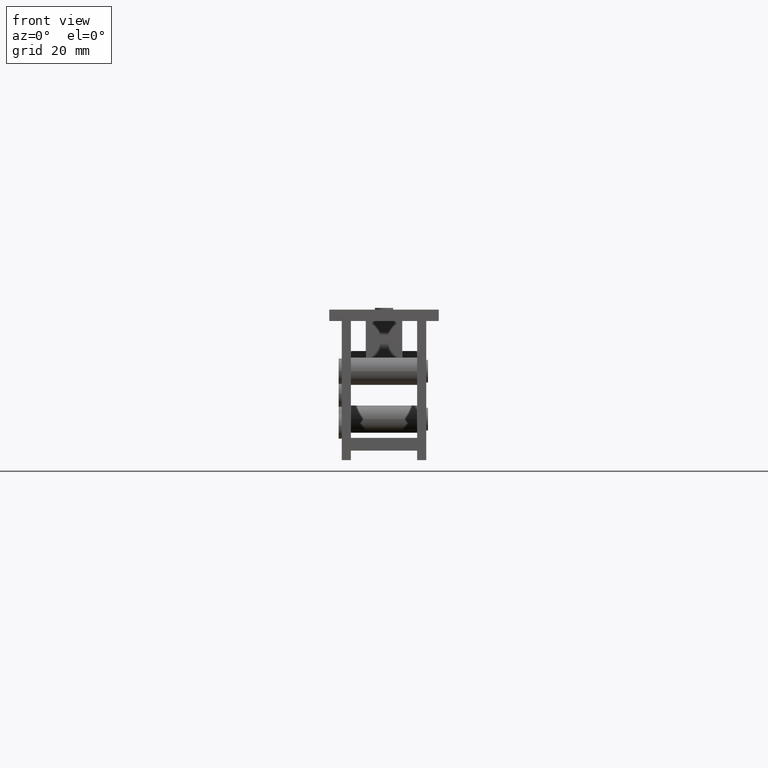
[diagram: clean part render]
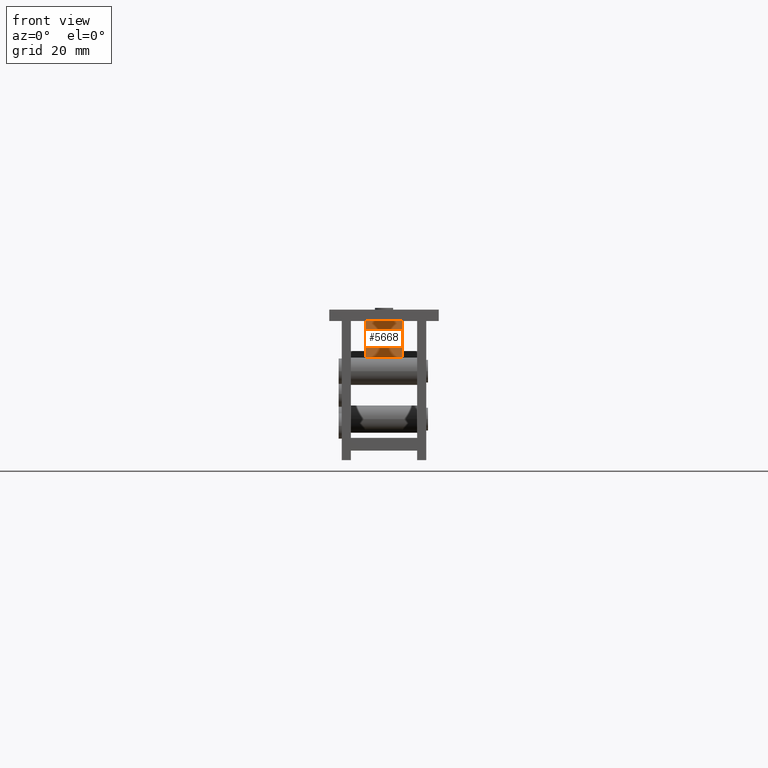
[diagram: same view with one face highlighted and labeled with its STEP entity id]
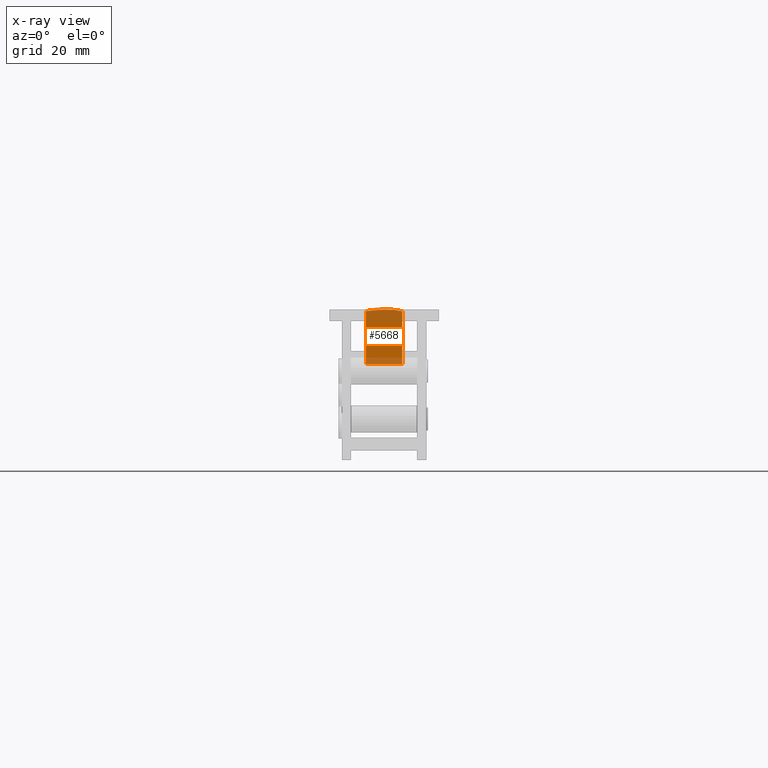
[diagram: x-ray of the same camera — body ghosted, the highlighted face saturated]
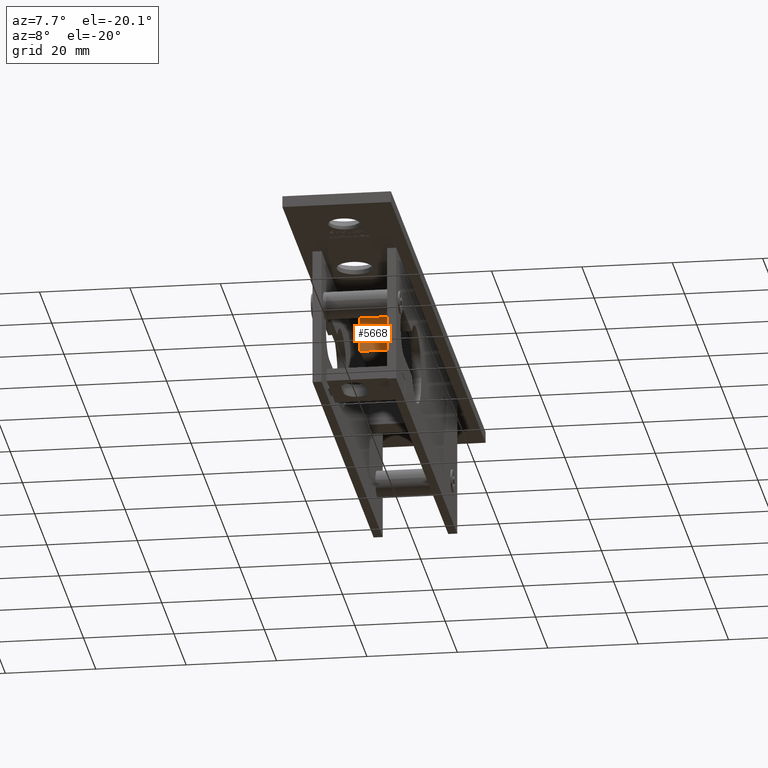
[diagram: same view with one face highlighted and labeled with its STEP entity id]
A machine part, front view. The second image highlights one B-rep face of the part: STEP entity #5668.
The next image is the same camera in x-ray: the body ghosted, the highlighted face saturated — about 32% of this face is hidden behind the body in this view.
A second angle (auxiliary view) of the same face is appended — the face is thin or edge-on in the first view.
In plain terms, the highlighted planar face has unit normal (0, 1, 0).
Its self-contained STEP definition (entity closure, byte-faithful):
#183 = CARTESIAN_POINT ( 'NONE',  ( 2.127858319362467832, -9.750000000000001776, 2.423410820697605494 ) ) ;
#550 = CARTESIAN_POINT ( 'NONE',  ( 3.999999999999989786, -9.750000000000001776, 2.500000000000000444 ) ) ;
#595 = CARTESIAN_POINT ( 'NONE',  ( -2.931938791051653226, -9.750000000000001776, 2.340261369920935586 ) ) ;
#645 = CARTESIAN_POINT ( 'NONE',  ( -3.547014129790519110, -9.750000000000001776, 2.231122433008354111 ) ) ;
#699 = CARTESIAN_POINT ( 'NONE',  ( -3.029808087435965192, -9.750000000000001776, 2.326453383005643083 ) ) ;
#764 = CARTESIAN_POINT ( 'NONE',  ( -3.779538273247380342, -9.750000000000001776, 2.163754766783144934 ) ) ;
#1152 = CARTESIAN_POINT ( 'NONE',  ( -3.936414049026728978, -9.750000000000001776, 2.103017513626646906 ) ) ;
#1220 = CARTESIAN_POINT ( 'NONE',  ( 3.999999999999989786, -9.750000000000001776, 2.000000000000000444 ) ) ;
#1677 = FACE_OUTER_BOUND ( 'NONE', #2202, .T. ) ;
#1989 = CARTESIAN_POINT ( 'NONE',  ( -2.997515683353156213, -9.750000000000001776, 2.331105316511609349 ) ) ;
#2047 = CARTESIAN_POINT ( 'NONE',  ( -3.555810541129456492, -9.750000000000005329, 2.229001468318298151 ) ) ;
#2108 = CARTESIAN_POINT ( 'NONE',  ( -3.502165305231407899, -9.750000000000003553, 2.241652690539796655 ) ) ;
#2202 = EDGE_LOOP ( 'NONE', ( #12087, #8667, #9665, #16462, #11654 ) ) ;
#2276 = CARTESIAN_POINT ( 'NONE',  ( -3.805105599472957678, -9.750000000000001776, 2.154170068151755046 ) ) ;
#2519 = CARTESIAN_POINT ( 'NONE',  ( 3.566327800000035797, -9.750000000000001776, 2.226432043467887922 ) ) ;
#2572 = CARTESIAN_POINT ( 'NONE',  ( 3.859967687762192234, -9.750000000000003553, 2.131428263836021131 ) ) ;
#2633 = CARTESIAN_POINT ( 'NONE',  ( 3.144666971411520073, -9.750000000000003553, 2.309071630294110555 ) ) ;
#2698 = CARTESIAN_POINT ( 'NONE',  ( 3.378479427268340718, -9.750000000000003553, 2.268879737863595203 ) ) ;
#2771 = CARTESIAN_POINT ( 'NONE',  ( 3.644236043277590653, -9.750000000000003553, 2.206328908921018961 ) ) ;
#2770 = CARTESIAN_POINT ( 'NONE',  ( -3.805268025144324717, -9.750000000000001776, 2.154113633260117844 ) ) ;
#3341 = DIRECTION ( 'NONE',  ( -0.000000000000000000, -0.000000000000000000, -1.000000000000000000 ) ) ;
#3395 = CARTESIAN_POINT ( 'NONE',  ( -3.436675990342047626, -9.750000000000001776, 2.256162694059299145 ) ) ;
#3501 = CARTESIAN_POINT ( 'NONE',  ( -0.8967534092444026106, -9.750000000000003553, 2.491219026035987660 ) ) ;
#3526 = DIRECTION ( 'NONE',  ( 1.000000000000000000, 0.000000000000000000, 0.000000000000000000 ) ) ;
#3871 = EDGE_CURVE ( 'NONE', #7304, #5216, #4334, .T. ) ;
#3928 = CARTESIAN_POINT ( 'NONE',  ( -4.000000000000015099, -9.750000000000001776, -9.500000000000000000 ) ) ;
#4037 = CARTESIAN_POINT ( 'NONE',  ( 3.064886521503688677, -9.750000000000001776, 2.321289112144451661 ) ) ;
#4036 = CARTESIAN_POINT ( 'NONE',  ( -3.800923253462755724, -9.750000000000001776, 2.155772169430227869 ) ) ;
#4108 = VERTEX_POINT ( 'NONE', #11902 ) ;
#4160 = CARTESIAN_POINT ( 'NONE',  ( 2.210700879780552963, -9.750000000000000000, 2.416812451018202079 ) ) ;
#4231 = CARTESIAN_POINT ( 'NONE',  ( 2.085934564569153160, -9.750000000000003553, 2.426636975059301093 ) ) ;
#4334 = B_SPLINE_CURVE_WITH_KNOTS ( 'NONE', 3,
 ( #1220, #9732, #5526, #8376, #2572, #18013, #6892, #15222, #16651, #11050, #5338, #2771, #8311, #11119, #12501, #2519, #12393, #2698, #6822, #2633, #18137, #16598, #13858, #4037, #13926, #9797, #12564, #4160, #183, #4231, #4361, #15657, #7078, #5924, #12639, #15595 ),
 .UNSPECIFIED., .F., .F.,
 ( 4, 1, 1, 1, 1, 2, 2, 1, 1, 1, 2, 2, 1, 1, 1, 1, 2, 2, 1, 1, 1, 1, 1, 2, 2, 4 ),
 ( 0.000000000000000000, 0.03125000000000646011, 0.04687500000000932587, 0.05468750000001070671, 0.05859375000001135203, 0.06054687500001157408, 0.06250000000001179612, 0.09375000000001512679, 0.1093750000000166395, 0.1171875000000172640, 0.1210937500000174305, 0.1250000000000175970, 0.1875000000000177913, 0.2187500000000177636, 0.2343750000000177636, 0.2421875000000179023, 0.2460937500000178468, 0.2500000000000177636, 0.3750000000000144329, 0.4375000000000128231, 0.4687500000000120459, 0.4843750000000117684, 0.4921875000000116573, 0.4960937500000114353, 0.5000000000000112133, 1.000000000000000000 ),
 .UNSPECIFIED. ) ;
#4361 = CARTESIAN_POINT ( 'NONE',  ( 2.067859567961101153, -9.750000000000003553, 2.428003963254740771 ) ) ;
#4386 = CARTESIAN_POINT ( 'NONE',  ( -1.040834085586084257E-14, -9.750000000000001776, 2.500000000000000444 ) ) ;
#4924 = CARTESIAN_POINT ( 'NONE',  ( -3.680167809476320162, -9.750000000000001776, 2.196718273185247039 ) ) ;
#4980 = EDGE_CURVE ( 'NONE', #14694, #14841, #16091, .T. ) ;
#5216 = VERTEX_POINT ( 'NONE', #4386 ) ;
#5338 = CARTESIAN_POINT ( 'NONE',  ( 3.719332293668366596, -9.750000000000001776, 2.184856670195607364 ) ) ;
#5526 = CARTESIAN_POINT ( 'NONE',  ( 3.975908419399936999, -9.750000000000001776, 2.064930943048528089 ) ) ;
#5668 = ADVANCED_FACE ( 'NONE', ( #1677 ), #15770, .F. ) ;
#5924 = CARTESIAN_POINT ( 'NONE',  ( 1.414097314730113908, -9.750000000000000000, 2.476604814145219269 ) ) ;
#6236 = EDGE_CURVE ( 'NONE', #7304, #14841, #13507, .T. ) ;
#6306 = CARTESIAN_POINT ( 'NONE',  ( -1.905951261702890864, -9.750000000000000000, 2.439676538236806191 ) ) ;
#6352 = CARTESIAN_POINT ( 'NONE',  ( -3.558447725039644460, -9.750000000000003553, 2.228363752692273270 ) ) ;
#6408 = CARTESIAN_POINT ( 'NONE',  ( -0.3663938571636815578, -9.750000000000000000, 2.500000000000000444 ) ) ;
#6822 = CARTESIAN_POINT ( 'NONE',  ( 3.225790708406793161, -9.750000000000000000, 2.295927732958057632 ) ) ;
#6892 = CARTESIAN_POINT ( 'NONE',  ( 3.823014716477216801, -9.750000000000001776, 2.147087685976311722 ) ) ;
#6891 = CARTESIAN_POINT ( 'NONE',  ( -4.000000000000015099, -9.750000000000001776, 2.000000000000000444 ) ) ;
#7078 = CARTESIAN_POINT ( 'NONE',  ( 2.048594408844573778, -9.750000000000001776, 2.429448892656679071 ) ) ;
#7304 = VERTEX_POINT ( 'NONE', #10401 ) ;
#7628 = EDGE_CURVE ( 'NONE', #5216, #4108, #8041, .T. ) ;
#7667 = CARTESIAN_POINT ( 'NONE',  ( -3.296302715322972254, -9.750000000000003553, 2.284374502752167135 ) ) ;
#7724 = CARTESIAN_POINT ( 'NONE',  ( -3.052673311419995539, -9.750000000000005329, 2.323100658700853138 ) ) ;
#7854 = CARTESIAN_POINT ( 'NONE',  ( -2.034662938349210748, -9.750000000000000000, 2.430482526923249953 ) ) ;
#8041 = B_SPLINE_CURVE_WITH_KNOTS ( 'NONE', 3,
 ( #14868, #6408, #3501, #14686, #16029, #6306, #9021, #16253, #17534, #7854, #11860, #17594, #10410, #10648, #595, #1989, #699, #13383, #7724, #11810, #9210, #7667, #3395, #2108, #10583, #645, #2047, #6352, #11923, #4924, #14742, #764, #13445, #4036, #2276, #2770, #1152, #16597, #6891 ),
 .UNSPECIFIED., .F., .F.,
 ( 4, 1, 1, 1, 1, 1, 1, 2, 2, 1, 1, 1, 1, 1, 2, 2, 1, 1, 1, 1, 2, 2, 1, 1, 1, 1, 2, 2, 4 ),
 ( 0.000000000000000000, 0.2500000000000058842, 0.3750000000000088263, 0.4375000000000103251, 0.4687500000000111022, 0.4843750000000114353, 0.4921875000000114908, 0.4960937500000114353, 0.5000000000000114353, 0.6250000000000102141, 0.6875000000000097700, 0.7187500000000094369, 0.7343750000000095479, 0.7421875000000096589, 0.7460937500000097700, 0.7500000000000098810, 0.8125000000000111022, 0.8437500000000117684, 0.8593750000000119904, 0.8671875000000122125, 0.8710937500000121014, 0.8750000000000118794, 0.9062500000000101030, 0.9218750000000089928, 0.9296875000000083267, 0.9335937500000079936, 0.9355468750000076605, 0.9375000000000074385, 1.000000000000000000 ),
 .UNSPECIFIED. ) ;
#8311 = CARTESIAN_POINT ( 'NONE',  ( 3.604015212690310666, -9.750000000000003553, 2.216947801669927109 ) ) ;
#8376 = CARTESIAN_POINT ( 'NONE',  ( 3.905641309316454812, -9.750000000000000000, 2.109392735931155283 ) ) ;
#8667 = ORIENTED_EDGE ( 'NONE', *, *, #7628, .T. ) ;
#8673 = VECTOR ( 'NONE', #3526, 1000.000000000000000 ) ;
#8938 = DIRECTION ( 'NONE',  ( 0.000000000000000000, 1.000000000000000000, 0.000000000000000000 ) ) ;
#9021 = CARTESIAN_POINT ( 'NONE',  ( -1.975407552365175068, -9.750000000000001776, 2.434794408181293779 ) ) ;
#9167 = CARTESIAN_POINT ( 'NONE',  ( -4.000000000000015099, -9.750000000000001776, -9.500000000000000000 ) ) ;
#9210 = CARTESIAN_POINT ( 'NONE',  ( -3.159877659180295062, -9.750000000000001776, 2.307170570181242386 ) ) ;
#9271 = DIRECTION ( 'NONE',  ( -0.000000000000000000, -0.000000000000000000, -1.000000000000000000 ) ) ;
#9665 = ORIENTED_EDGE ( 'NONE', *, *, #17248, .T. ) ;
#9732 = CARTESIAN_POINT ( 'NONE',  ( 3.999999999999988010, -9.750000000000001776, 2.026150999881308312 ) ) ;
#9797 = CARTESIAN_POINT ( 'NONE',  ( 2.679617665569866247, -9.750000000000003553, 2.373132526173472368 ) ) ;
#10332 = DIRECTION ( 'NONE',  ( 0.000000000000000000, -0.000000000000000000, 1.000000000000000000 ) ) ;
#10401 = CARTESIAN_POINT ( 'NONE',  ( 3.999999999999989786, -9.750000000000001776, 2.000000000000000444 ) ) ;
#10410 = CARTESIAN_POINT ( 'NONE',  ( -2.510699081437833602, -9.750000000000000000, 2.391058909503801733 ) ) ;
#10583 = CARTESIAN_POINT ( 'NONE',  ( -3.533735632021041351, -9.749999999999998224, 2.234296663986776732 ) ) ;
#10648 = CARTESIAN_POINT ( 'NONE',  ( -2.796816669905103137, -9.750000000000001776, 2.357982222329143784 ) ) ;
#10675 = AXIS2_PLACEMENT_3D ( 'NONE', #15644, #8938, #10332 ) ;
#11050 = CARTESIAN_POINT ( 'NONE',  ( 3.774536946945395766, -9.749999999999998224, 2.166049974326523575 ) ) ;
#11119 = CARTESIAN_POINT ( 'NONE',  ( 3.586204991283212795, -9.750000000000001776, 2.221473635716502582 ) ) ;
#11654 = ORIENTED_EDGE ( 'NONE', *, *, #6236, .F. ) ;
#11810 = CARTESIAN_POINT ( 'NONE',  ( -3.055638055408469445, -9.750000000000003553, 2.322663528806153899 ) ) ;
#11860 = CARTESIAN_POINT ( 'NONE',  ( -2.038459188978403613, -9.750000000000003553, 2.430202088556386641 ) ) ;
#11902 = CARTESIAN_POINT ( 'NONE',  ( -4.000000000000015099, -9.750000000000001776, 2.000000000000000444 ) ) ;
#11923 = CARTESIAN_POINT ( 'NONE',  ( -3.613125845048687612, -9.750000000000003553, 2.214949566606038811 ) ) ;
#11983 = VECTOR ( 'NONE', #9271, 1000.000000000000000 ) ;
#12087 = ORIENTED_EDGE ( 'NONE', *, *, #3871, .T. ) ;
#12290 = CARTESIAN_POINT ( 'NONE',  ( 3.999999999999989786, -9.750000000000001776, -9.500000000000000000 ) ) ;
#12393 = CARTESIAN_POINT ( 'NONE',  ( 3.492969034642797954, -9.750000000000001776, 2.244392541344298220 ) ) ;
#12501 = CARTESIAN_POINT ( 'NONE',  ( 3.574204238659818955, -9.750000000000003553, 2.224485276194514860 ) ) ;
#12564 = CARTESIAN_POINT ( 'NONE',  ( 2.372366203942555707, -9.750000000000003553, 2.403031467835352597 ) ) ;
#12639 = CARTESIAN_POINT ( 'NONE',  ( 0.7328720391568874781, -9.749999999999998224, 2.499999999999999556 ) ) ;
#13161 = CARTESIAN_POINT ( 'NONE',  ( -4.000000000000015099, -9.750000000000001776, 2.500000000000000444 ) ) ;
#13383 = CARTESIAN_POINT ( 'NONE',  ( -3.043541394456894977, -9.750000000000000000, 2.324443860045662724 ) ) ;
#13445 = CARTESIAN_POINT ( 'NONE',  ( -3.794603936044449899, -9.750000000000005329, 2.158172620473151948 ) ) ;
#13507 = LINE ( 'NONE', #550, #11983 ) ;
#13858 = CARTESIAN_POINT ( 'NONE',  ( 3.072600407539135325, -9.750000000000000000, 2.320136465398852099 ) ) ;
#13926 = CARTESIAN_POINT ( 'NONE',  ( 2.915411741198949525, -9.750000000000000000, 2.343498618526981936 ) ) ;
#14346 = LINE ( 'NONE', #13161, #16502 ) ;
#14686 = CARTESIAN_POINT ( 'NONE',  ( -1.481851561091879654, -9.750000000000005329, 2.465607851974283893 ) ) ;
#14694 = VERTEX_POINT ( 'NONE', #9167 ) ;
#14742 = CARTESIAN_POINT ( 'NONE',  ( -3.748124592369152630, -9.750000000000003553, 2.174843434909153661 ) ) ;
#14841 = VERTEX_POINT ( 'NONE', #12290 ) ;
#14868 = CARTESIAN_POINT ( 'NONE',  ( -1.040834085586084257E-14, -9.750000000000001776, 2.500000000000000444 ) ) ;
#15222 = CARTESIAN_POINT ( 'NONE',  ( 3.815235143575116616, -9.750000000000003553, 2.150212360375048259 ) ) ;
#15595 = CARTESIAN_POINT ( 'NONE',  ( -1.040834085586084257E-14, -9.750000000000001776, 2.500000000000000444 ) ) ;
#15644 = CARTESIAN_POINT ( 'NONE',  ( -4.000000000000015099, -9.750000000000001776, 2.500000000000000444 ) ) ;
#15657 = CARTESIAN_POINT ( 'NONE',  ( 2.055785642861246210, -9.750000000000007105, 2.428911811076558180 ) ) ;
#15770 = PLANE ( 'NONE',  #10675 ) ;
#16029 = CARTESIAN_POINT ( 'NONE',  ( -1.765986972287277634, -9.750000000000001776, 2.448960588834174334 ) ) ;
#16091 = LINE ( 'NONE', #3928, #8673 ) ;
#16253 = CARTESIAN_POINT ( 'NONE',  ( -2.010004234184938898, -9.750000000000003553, 2.432293316964330820 ) ) ;
#16462 = ORIENTED_EDGE ( 'NONE', *, *, #4980, .T. ) ;
#16502 = VECTOR ( 'NONE', #3341, 1000.000000000000000 ) ;
#16598 = CARTESIAN_POINT ( 'NONE',  ( 3.084758486343760264, -9.750000000000005329, 2.318304015804557139 ) ) ;
#16597 = CARTESIAN_POINT ( 'NONE',  ( -4.000000000000015099, -9.750000000000000000, 2.052162424960481513 ) ) ;
#16651 = CARTESIAN_POINT ( 'NONE',  ( 3.809313005715465827, -9.750000000000001776, 2.152538769282632547 ) ) ;
#17248 = EDGE_CURVE ( 'NONE', #4108, #14694, #14346, .T. ) ;
#17534 = CARTESIAN_POINT ( 'NONE',  ( -2.024803212783826911, -9.750000000000003553, 2.431208557973660422 ) ) ;
#17594 = CARTESIAN_POINT ( 'NONE',  ( -2.238243983595880504, -9.750000000000001776, 2.415356039696206825 ) ) ;
#18013 = CARTESIAN_POINT ( 'NONE',  ( 3.834495860356926134, -9.750000000000000000, 2.142397185654341119 ) ) ;
#18137 = CARTESIAN_POINT ( 'NONE',  ( 3.102910258522755704, -9.750000000000003553, 2.315548553909341667 ) ) ;